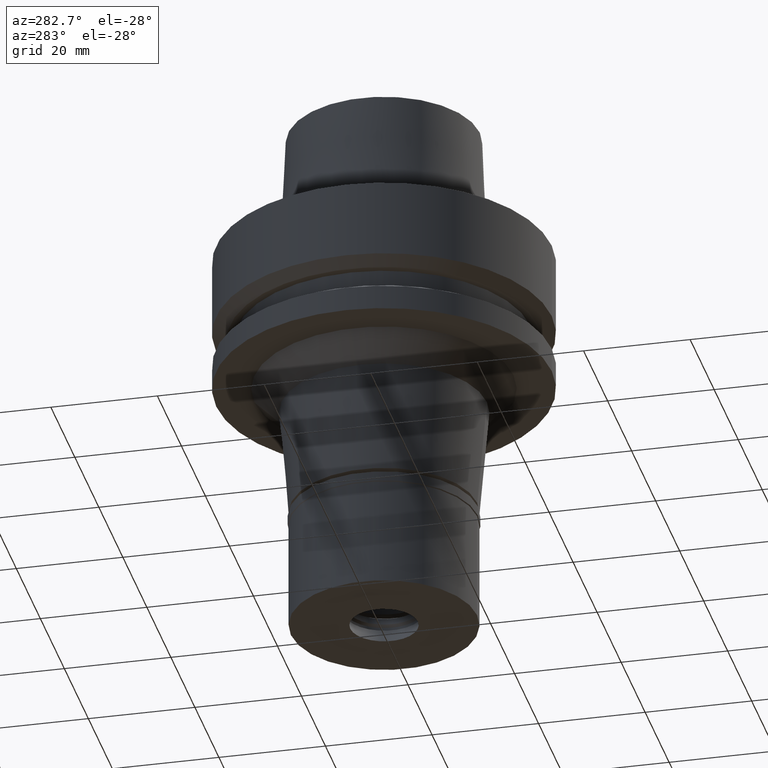
[diagram: clean part render]
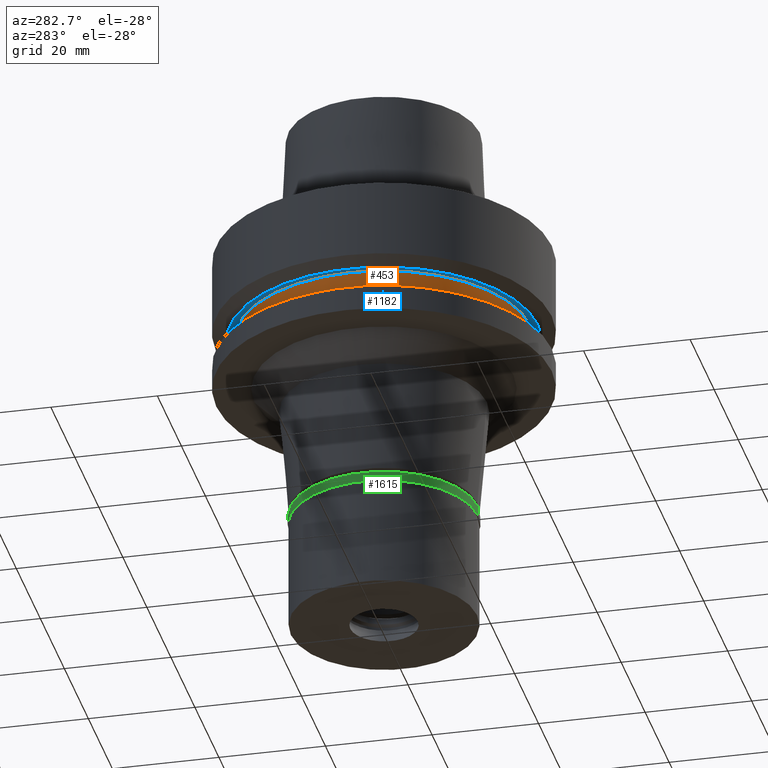
[diagram: same view with three faces highlighted in distinct colors, each labeled with its STEP entity id]
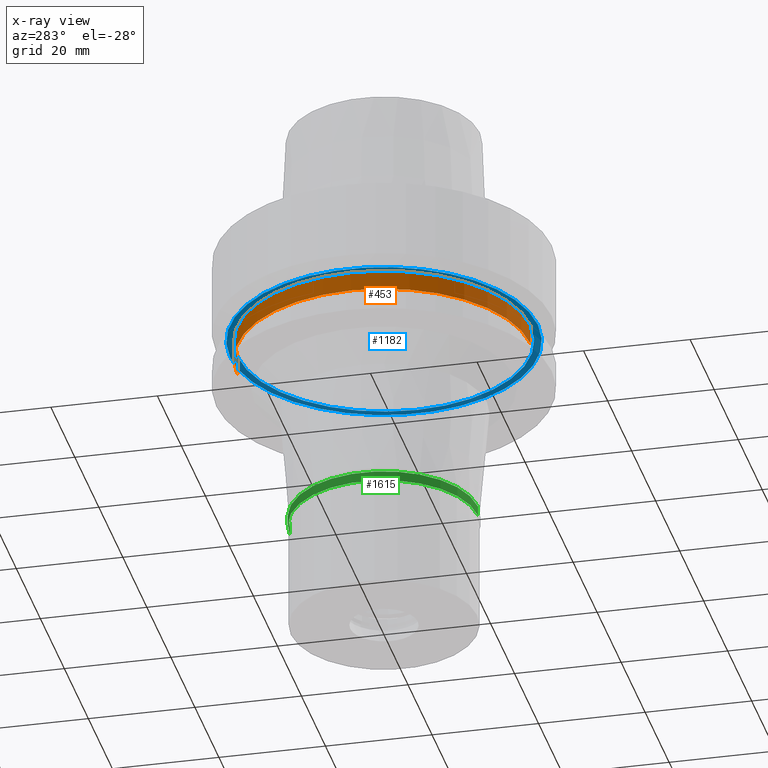
[diagram: x-ray of the same camera — body ghosted, the three highlighted faces saturated]
A machine part, auxiliary view with three faces highlighted in distinct colors.
The next image is the same camera in x-ray (body ghosted, the three faces saturated) — at least one of them is partly hidden behind the body in this view.
Their STEP definitions:

[orange] entity #453 — the highlighted cylindrical surface (partial cylindrical patch) has radius 27.5 mm, axis along (0, 0, 1).
#46 = CIRCLE ( 'NONE', #2529, 27.50000000000000000 ) ;
#123 = DIRECTION ( 'NONE',  ( 0.0000000000000000000, 0.0000000000000000000, 1.000000000000000000 ) ) ;
#176 = CARTESIAN_POINT ( 'NONE',  ( 0.0000000000000000000, 0.0000000000000000000, -19.87500000000000000 ) ) ;
#245 = CARTESIAN_POINT ( 'NONE',  ( 0.0000000000000000000, 27.50000000000000000, -16.12500000000000000 ) ) ;
#247 = CARTESIAN_POINT ( 'NONE',  ( 0.0000000000000000000, -27.50000000000000000, -19.87500000000000000 ) ) ;
#251 = VERTEX_POINT ( 'NONE', #245 ) ;
#261 = CARTESIAN_POINT ( 'NONE',  ( 0.0000000000000000000, -27.50000000000000000, -16.12500000000000000 ) ) ;
#340 = EDGE_CURVE ( 'NONE', #1552, #2213, #1543, .T. ) ;
#453 = ADVANCED_FACE ( 'NONE', ( #2492 ), #1450, .T. ) ;
#459 = CARTESIAN_POINT ( 'NONE',  ( 0.0000000000000000000, -27.50000000000000000, -16.12500000000000000 ) ) ;
#472 = VECTOR ( 'NONE', #2608, 1000.000000000000000 ) ;
#529 = VECTOR ( 'NONE', #1121, 1000.000000000000000 ) ;
#764 = DIRECTION ( 'NONE',  ( 0.0000000000000000000, 1.000000000000000000, 0.0000000000000000000 ) ) ;
#917 = ORIENTED_EDGE ( 'NONE', *, *, #2019, .T. ) ;
#1104 = CARTESIAN_POINT ( 'NONE',  ( 0.0000000000000000000, 27.50000000000000000, -19.87500000000000000 ) ) ;
#1121 = DIRECTION ( 'NONE',  ( 0.0000000000000000000, 0.0000000000000000000, -1.000000000000000000 ) ) ;
#1159 = DIRECTION ( 'NONE',  ( 0.0000000000000000000, -1.000000000000000000, 0.0000000000000000000 ) ) ;
#1421 = CARTESIAN_POINT ( 'NONE',  ( 0.0000000000000000000, 0.0000000000000000000, -72.96500000000000341 ) ) ;
#1450 = CYLINDRICAL_SURFACE ( 'NONE', #1539, 27.50000000000000000 ) ;
#1539 = AXIS2_PLACEMENT_3D ( 'NONE', #1421, #123, #764 ) ;
#1543 = LINE ( 'NONE', #261, #529 ) ;
#1552 = VERTEX_POINT ( 'NONE', #459 ) ;
#1608 = ORIENTED_EDGE ( 'NONE', *, *, #1672, .T. ) ;
#1634 = ORIENTED_EDGE ( 'NONE', *, *, #2781, .T. ) ;
#1672 = EDGE_CURVE ( 'NONE', #2047, #2213, #2244, .T. ) ;
#1750 = CARTESIAN_POINT ( 'NONE',  ( 0.0000000000000000000, 27.50000000000000000, -16.12500000000000000 ) ) ;
#1803 = CARTESIAN_POINT ( 'NONE',  ( 0.0000000000000000000, 0.0000000000000000000, -16.12500000000000000 ) ) ;
#1950 = LINE ( 'NONE', #1750, #472 ) ;
#2001 = ORIENTED_EDGE ( 'NONE', *, *, #340, .F. ) ;
#2019 = EDGE_CURVE ( 'NONE', #251, #2047, #1950, .T. ) ;
#2047 = VERTEX_POINT ( 'NONE', #1104 ) ;
#2050 = DIRECTION ( 'NONE',  ( 0.0000000000000000000, 0.0000000000000000000, 1.000000000000000000 ) ) ;
#2063 = EDGE_LOOP ( 'NONE', ( #1608, #2001, #1634, #917 ) ) ;
#2213 = VERTEX_POINT ( 'NONE', #247 ) ;
#2244 = CIRCLE ( 'NONE', #2663, 27.50000000000000000 ) ;
#2281 = DIRECTION ( 'NONE',  ( 0.0000000000000000000, 1.000000000000000000, 0.0000000000000000000 ) ) ;
#2492 = FACE_OUTER_BOUND ( 'NONE', #2063, .T. ) ;
#2529 = AXIS2_PLACEMENT_3D ( 'NONE', #1803, #2673, #1159 ) ;
#2608 = DIRECTION ( 'NONE',  ( 0.0000000000000000000, 0.0000000000000000000, -1.000000000000000000 ) ) ;
#2663 = AXIS2_PLACEMENT_3D ( 'NONE', #176, #2050, #2281 ) ;
#2673 = DIRECTION ( 'NONE',  ( 0.0000000000000000000, 0.0000000000000000000, -1.000000000000000000 ) ) ;
#2781 = EDGE_CURVE ( 'NONE', #1552, #251, #46, .T. ) ;

[blue] entity #1182 — the highlighted planar face has unit normal (0, 0, 1).
#3 = AXIS2_PLACEMENT_3D ( 'NONE', #1947, #627, #1046 ) ;
#46 = CIRCLE ( 'NONE', #2529, 27.50000000000000000 ) ;
#125 = CARTESIAN_POINT ( 'NONE',  ( 0.0000000000000000000, 28.89759526419000224, -16.12500000000000000 ) ) ;
#201 = FACE_BOUND ( 'NONE', #492, .T. ) ;
#221 = VERTEX_POINT ( 'NONE', #2184 ) ;
#245 = CARTESIAN_POINT ( 'NONE',  ( 0.0000000000000000000, 27.50000000000000000, -16.12500000000000000 ) ) ;
#251 = VERTEX_POINT ( 'NONE', #245 ) ;
#299 = CARTESIAN_POINT ( 'NONE',  ( 0.0000000000000000000, 0.0000000000000000000, -16.12500000000000000 ) ) ;
#459 = CARTESIAN_POINT ( 'NONE',  ( 0.0000000000000000000, -27.50000000000000000, -16.12500000000000000 ) ) ;
#492 = EDGE_LOOP ( 'NONE', ( #1741, #508 ) ) ;
#508 = ORIENTED_EDGE ( 'NONE', *, *, #2781, .F. ) ;
#590 = CARTESIAN_POINT ( 'NONE',  ( 0.0000000000000000000, 0.0000000000000000000, -16.12500000000000000 ) ) ;
#627 = DIRECTION ( 'NONE',  ( 0.0000000000000000000, 0.0000000000000000000, 1.000000000000000000 ) ) ;
#765 = EDGE_LOOP ( 'NONE', ( #2723, #2171 ) ) ;
#792 = CIRCLE ( 'NONE', #1931, 28.89759526419000224 ) ;
#928 = AXIS2_PLACEMENT_3D ( 'NONE', #299, #1144, #1366 ) ;
#958 = VERTEX_POINT ( 'NONE', #125 ) ;
#1046 = DIRECTION ( 'NONE',  ( 1.000000000000000000, 0.0000000000000000000, 0.0000000000000000000 ) ) ;
#1144 = DIRECTION ( 'NONE',  ( 0.0000000000000000000, 0.0000000000000000000, -1.000000000000000000 ) ) ;
#1159 = DIRECTION ( 'NONE',  ( 0.0000000000000000000, -1.000000000000000000, 0.0000000000000000000 ) ) ;
#1161 = CIRCLE ( 'NONE', #1805, 28.89759526419000224 ) ;
#1182 = ADVANCED_FACE ( 'NONE', ( #1729, #201 ), #2580, .F. ) ;
#1335 = DIRECTION ( 'NONE',  ( 0.0000000000000000000, -1.000000000000000000, 0.0000000000000000000 ) ) ;
#1366 = DIRECTION ( 'NONE',  ( 0.0000000000000000000, 1.000000000000000000, 0.0000000000000000000 ) ) ;
#1552 = VERTEX_POINT ( 'NONE', #459 ) ;
#1564 = DIRECTION ( 'NONE',  ( 0.0000000000000000000, 0.0000000000000000000, 1.000000000000000000 ) ) ;
#1581 = CARTESIAN_POINT ( 'NONE',  ( 0.0000000000000000000, 0.0000000000000000000, -16.12500000000000000 ) ) ;
#1652 = DIRECTION ( 'NONE',  ( 0.0000000000000000000, 0.0000000000000000000, 1.000000000000000000 ) ) ;
#1729 = FACE_OUTER_BOUND ( 'NONE', #765, .T. ) ;
#1741 = ORIENTED_EDGE ( 'NONE', *, *, #2711, .F. ) ;
#1803 = CARTESIAN_POINT ( 'NONE',  ( 0.0000000000000000000, 0.0000000000000000000, -16.12500000000000000 ) ) ;
#1805 = AXIS2_PLACEMENT_3D ( 'NONE', #1581, #1564, #1335 ) ;
#1931 = AXIS2_PLACEMENT_3D ( 'NONE', #590, #1652, #2077 ) ;
#1947 = CARTESIAN_POINT ( 'NONE',  ( 0.0000000000000000000, 0.0000000000000000000, -16.12500000000000000 ) ) ;
#2077 = DIRECTION ( 'NONE',  ( 0.0000000000000000000, 1.000000000000000000, 0.0000000000000000000 ) ) ;
#2102 = EDGE_CURVE ( 'NONE', #221, #958, #1161, .T. ) ;
#2161 = CIRCLE ( 'NONE', #928, 27.50000000000000000 ) ;
#2171 = ORIENTED_EDGE ( 'NONE', *, *, #2102, .F. ) ;
#2184 = CARTESIAN_POINT ( 'NONE',  ( 0.0000000000000000000, -28.89759526419000224, -16.12500000000000000 ) ) ;
#2299 = EDGE_CURVE ( 'NONE', #958, #221, #792, .T. ) ;
#2529 = AXIS2_PLACEMENT_3D ( 'NONE', #1803, #2673, #1159 ) ;
#2580 = PLANE ( 'NONE',  #3 ) ;
#2673 = DIRECTION ( 'NONE',  ( 0.0000000000000000000, 0.0000000000000000000, -1.000000000000000000 ) ) ;
#2711 = EDGE_CURVE ( 'NONE', #251, #1552, #2161, .T. ) ;
#2723 = ORIENTED_EDGE ( 'NONE', *, *, #2299, .F. ) ;
#2781 = EDGE_CURVE ( 'NONE', #1552, #251, #46, .T. ) ;

[green] entity #1615 — the highlighted cylindrical surface (partial cylindrical patch) has radius 17.65 mm, axis along (0, 0, -1).
#37 = DIRECTION ( 'NONE',  ( 0.0000000000000000000, 0.0000000000000000000, -1.000000000000000000 ) ) ;
#53 = EDGE_LOOP ( 'NONE', ( #585, #1241, #2593, #2067 ) ) ;
#212 = DIRECTION ( 'NONE',  ( 0.0000000000000000000, -1.000000000000000000, 0.0000000000000000000 ) ) ;
#226 = AXIS2_PLACEMENT_3D ( 'NONE', #1395, #2438, #1351 ) ;
#305 = VERTEX_POINT ( 'NONE', #1584 ) ;
#306 = CARTESIAN_POINT ( 'NONE',  ( 0.0000000000000000000, -17.64999999999999858, 0.0000000000000000000 ) ) ;
#332 = CARTESIAN_POINT ( 'NONE',  ( 0.0000000000000000000, 0.0000000000000000000, 0.0000000000000000000 ) ) ;
#501 = CARTESIAN_POINT ( 'NONE',  ( 0.0000000000000000000, 17.64999999999999858, 0.0000000000000000000 ) ) ;
#585 = ORIENTED_EDGE ( 'NONE', *, *, #2083, .T. ) ;
#606 = VECTOR ( 'NONE', #2456, 1000.000000000000000 ) ;
#649 = VECTOR ( 'NONE', #2211, 1000.000000000000000 ) ;
#819 = VERTEX_POINT ( 'NONE', #2689 ) ;
#909 = LINE ( 'NONE', #501, #649 ) ;
#1153 = EDGE_CURVE ( 'NONE', #1508, #1521, #2286, .T. ) ;
#1241 = ORIENTED_EDGE ( 'NONE', *, *, #1602, .F. ) ;
#1340 = AXIS2_PLACEMENT_3D ( 'NONE', #2389, #37, #212 ) ;
#1351 = DIRECTION ( 'NONE',  ( 0.0000000000000000000, 1.000000000000000000, 0.0000000000000000000 ) ) ;
#1395 = CARTESIAN_POINT ( 'NONE',  ( 0.0000000000000000000, 0.0000000000000000000, -1.850000000000000089 ) ) ;
#1444 = DIRECTION ( 'NONE',  ( 0.0000000000000000000, 0.0000000000000000000, -1.000000000000000000 ) ) ;
#1508 = VERTEX_POINT ( 'NONE', #306 ) ;
#1521 = VERTEX_POINT ( 'NONE', #2696 ) ;
#1584 = CARTESIAN_POINT ( 'NONE',  ( 0.0000000000000000000, 17.64999999999999858, -1.850000000000000089 ) ) ;
#1602 = EDGE_CURVE ( 'NONE', #1508, #819, #1605, .T. ) ;
#1605 = LINE ( 'NONE', #2241, #606 ) ;
#1615 = ADVANCED_FACE ( 'NONE', ( #2546 ), #1657, .T. ) ;
#1657 = CYLINDRICAL_SURFACE ( 'NONE', #1754, 17.64999999999999858 ) ;
#1754 = AXIS2_PLACEMENT_3D ( 'NONE', #332, #1444, #2748 ) ;
#2067 = ORIENTED_EDGE ( 'NONE', *, *, #2145, .T. ) ;
#2083 = EDGE_CURVE ( 'NONE', #305, #819, #2293, .T. ) ;
#2145 = EDGE_CURVE ( 'NONE', #1521, #305, #909, .T. ) ;
#2211 = DIRECTION ( 'NONE',  ( 0.0000000000000000000, 0.0000000000000000000, -1.000000000000000000 ) ) ;
#2241 = CARTESIAN_POINT ( 'NONE',  ( 0.0000000000000000000, -17.64999999999999858, 0.0000000000000000000 ) ) ;
#2286 = CIRCLE ( 'NONE', #1340, 17.64999999999999858 ) ;
#2293 = CIRCLE ( 'NONE', #226, 17.64999999999999858 ) ;
#2389 = CARTESIAN_POINT ( 'NONE',  ( 0.0000000000000000000, 0.0000000000000000000, 0.0000000000000000000 ) ) ;
#2438 = DIRECTION ( 'NONE',  ( 0.0000000000000000000, 0.0000000000000000000, 1.000000000000000000 ) ) ;
#2456 = DIRECTION ( 'NONE',  ( 0.0000000000000000000, 0.0000000000000000000, -1.000000000000000000 ) ) ;
#2546 = FACE_OUTER_BOUND ( 'NONE', #53, .T. ) ;
#2593 = ORIENTED_EDGE ( 'NONE', *, *, #1153, .T. ) ;
#2689 = CARTESIAN_POINT ( 'NONE',  ( 0.0000000000000000000, -17.64999999999999858, -1.850000000000000089 ) ) ;
#2696 = CARTESIAN_POINT ( 'NONE',  ( 0.0000000000000000000, 17.64999999999999858, 0.0000000000000000000 ) ) ;
#2748 = DIRECTION ( 'NONE',  ( 0.0000000000000000000, -1.000000000000000000, 0.0000000000000000000 ) ) ;